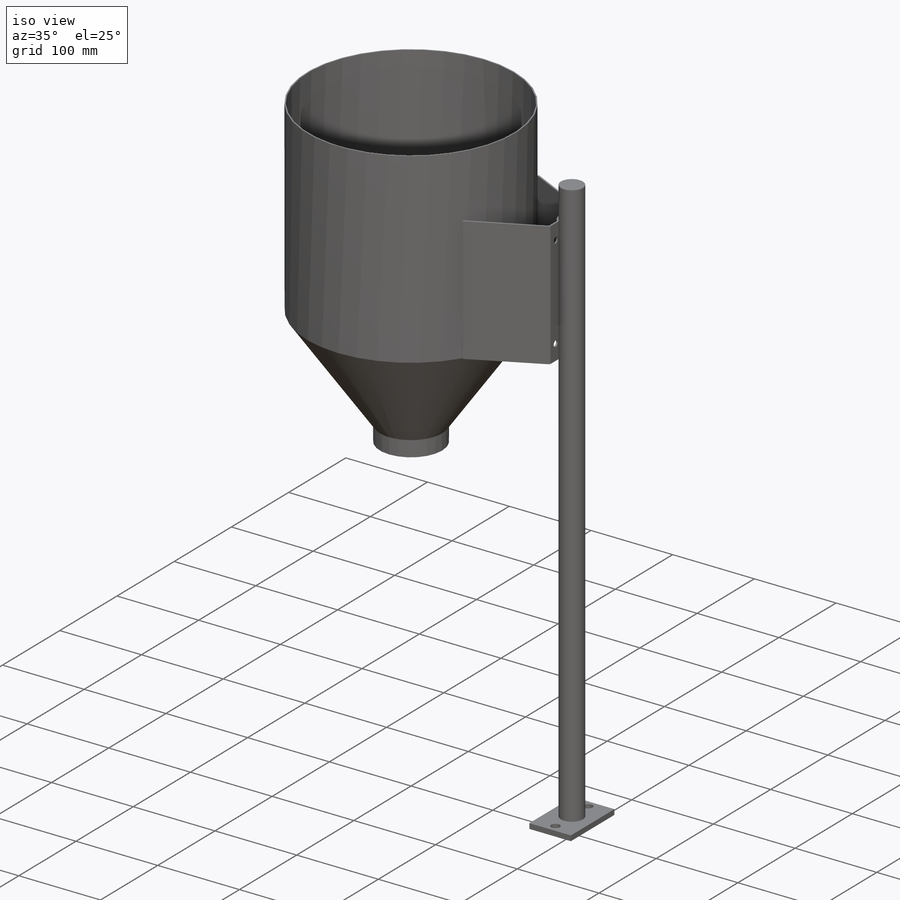
[diagram: iso view]
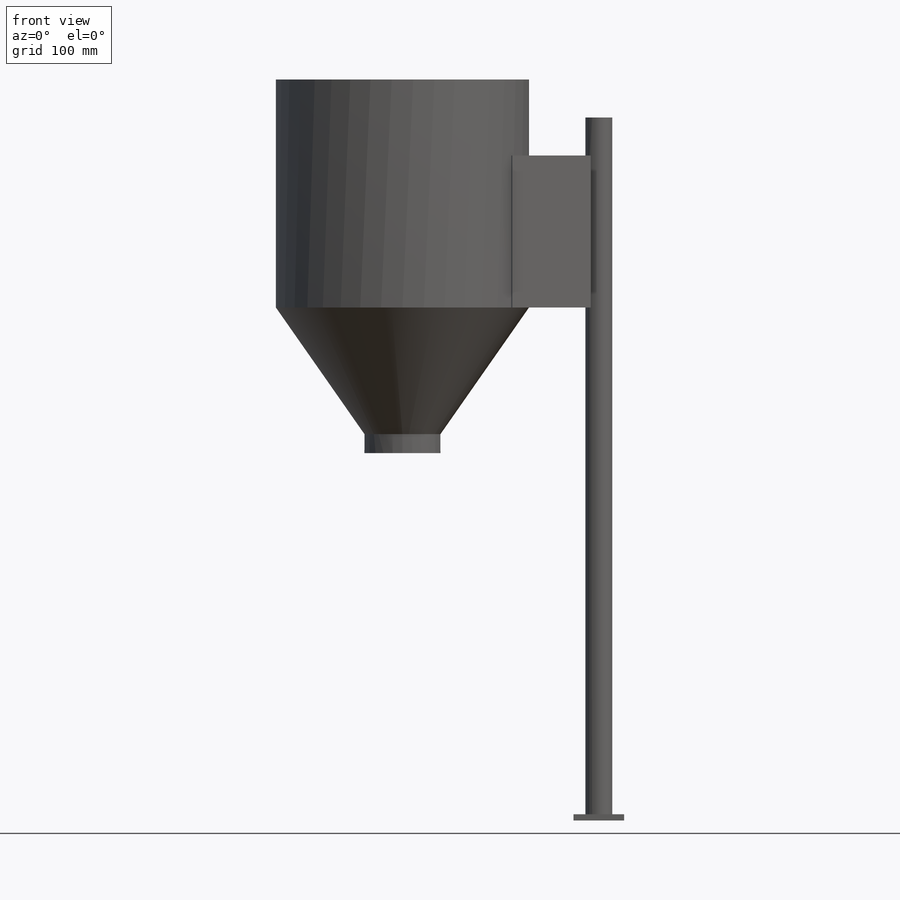
[diagram: front view]
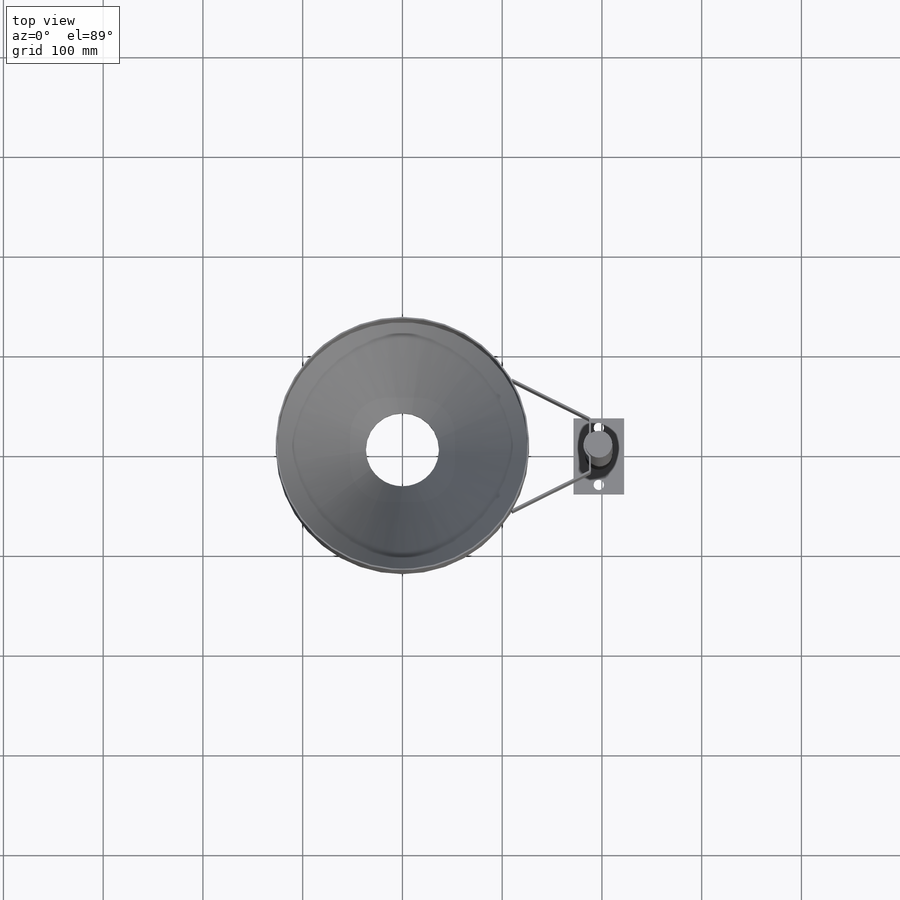
[diagram: top view]
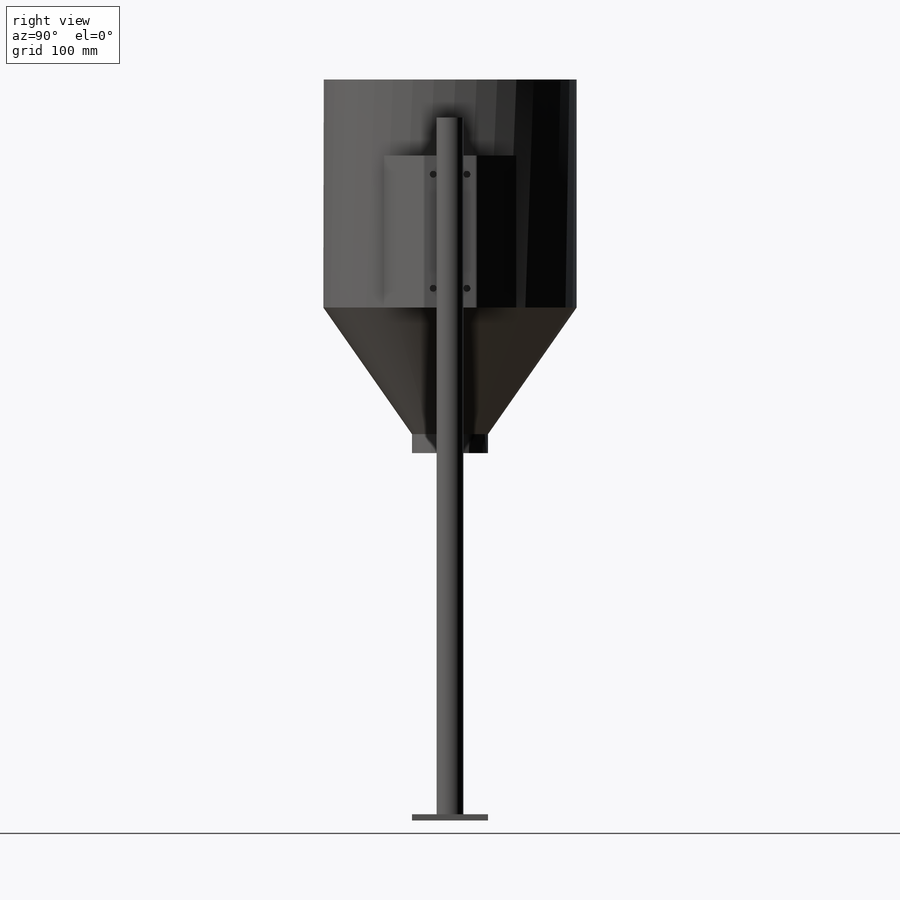
[diagram: right view]
SOLIDWORKS PART (.sldprt)
format: sldprt  version: not decoded by parser v0  size: 734,208 bytes
history: native  units: mm
features: sketch x7, extrude x3, fillet x2, cut_extrude x2, material x1, revolve x1, shell x1, hole x1 + 1 further entry (+12 scaffold rows collapsed)
feature tree (31):
  scaffold x12  (default folders/planes/origin — collapsed)
  material  "Material <not specified>"
  "Design Table"
  sketch  "Sketch1"  dims[Neck Diameter=76.2mm Upper Body Diameter=254.0mm Upper Body Height=228.6mm Neck Height=19.05mm Cone Height=127.0mm]
  revolve  "Revolve1"  Angle=360deg
  shell  "Shell1"  Thickness=1.4986mm Gage Thickness=1.4986mm
  sketch  "Sketch2"  dims[c1.D1=~7.230109mm c1.D2=13.462mm c1.D5=13.462mm c1.Radius of Body to Radius of Bracket=196.85mm c1.D3=~16.276256mm c1.D4=~1.89738mm c2.D5=7.9375mm c2.D6=~54.298457mm c2.D1=~86.864784mm c2.D4=~1.89738mm]
  extrude  "Extrude1"  Depth=152.4mm
  fillet  "Fillet 1/8"  Radius=3.175mm
  fillet  "Fillet .050"  Radius=1.27mm
  sketch  "Sketch3"  dims[c1.D1=6.985mm c1.D2=6.985mm c1.D4=6.985mm c1.D5=6.985mm c2.D2=33.782mm c2.D3=16.891mm c2.D4=19.05mm c2.D5=19.05mm]
  cut_extrude  "Cut-Extrude1"  [1 undecoded]
  sketch  "Sketch5"
  extrude  "Extrude2"  Depth=361.95mm
  sketch  "Sketch6"
  cut_extrude  "param"  Depth=26.924mm
  extrude  "Extrude3"  Depth=6.35mm
  hole  "13/32 (0.40625) Diameter Hole1"  Diameter=10.32002mm Depth=6.35mm
  sketch  "Sketch8"  dims[D1=25.4mm D2=57.15mm D3=9.525mm]
  sketch  "Sketch7"  dims[hole-wizard template sketch: 59 standard entries collapsed; hole parameters kept: c18.Thru Hole Dia.=~10.32002mm c18.Thru Hole Depth=6.35mm]
decode coverage: 14 of 17 modeling features carry decoded parameters; 1 rows unclassified (native names shown)
note: ~ marks probable driven/reference dimensions
note: 1 parameter value undecoded
note: suppression state not decoded; provenance and decode notes live in map.json
